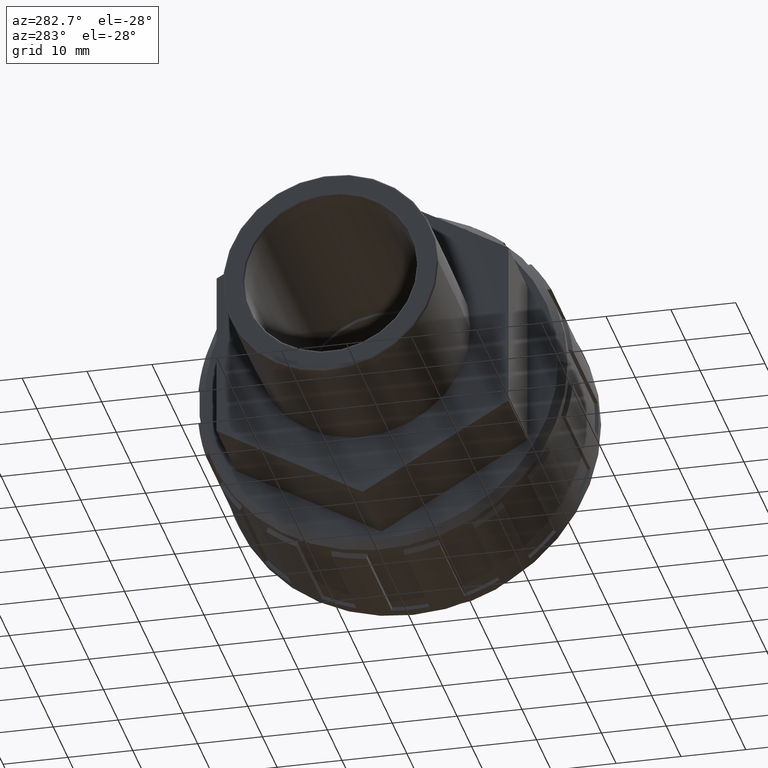
[diagram: clean part render]
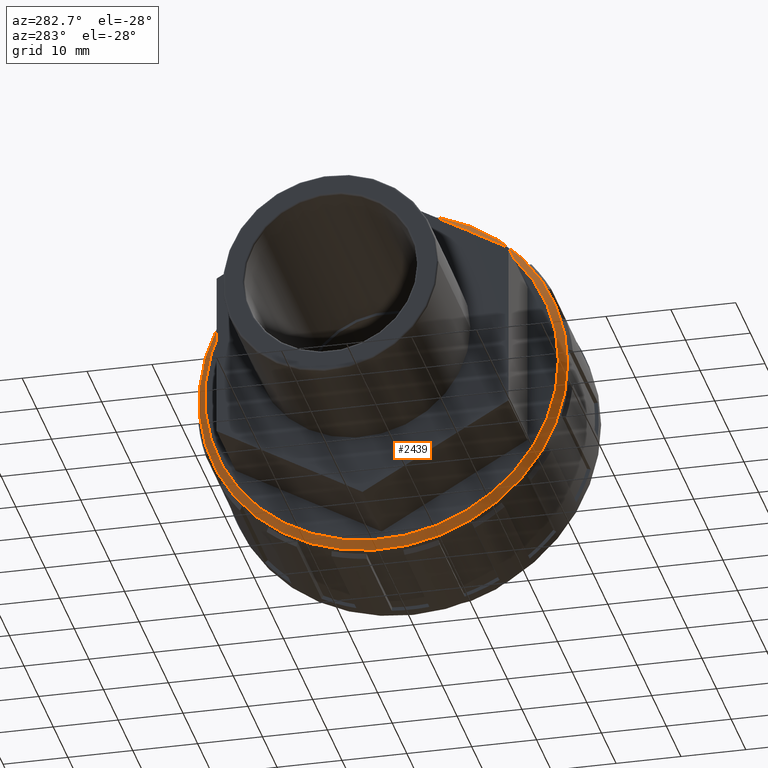
[diagram: same view with one face highlighted and labeled with its STEP entity id]
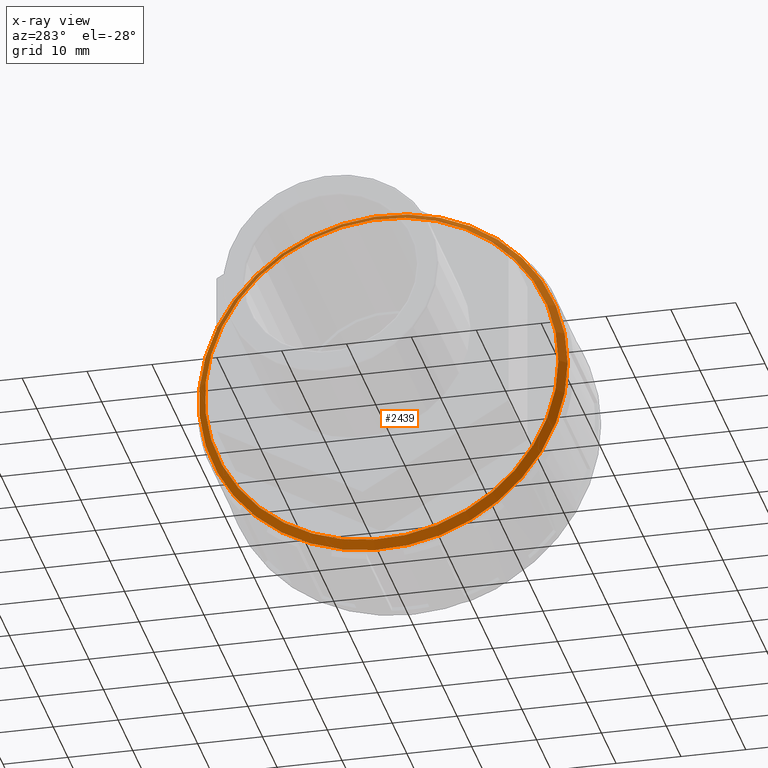
[diagram: x-ray of the same camera — body ghosted, the highlighted face saturated]
A machine part, auxiliary view. The second image highlights one B-rep face of the part: STEP entity #2439.
The next image is the same camera in x-ray: the body ghosted, the highlighted face saturated — about 13% of this face is hidden behind the body in this view.
In plain terms, the highlighted conical surface has half-angle 45 deg.
Its self-contained STEP definition (entity closure, byte-faithful):
#46=CONICAL_SURFACE('',#2690,27.84,45.);
#60=FACE_BOUND('',#479,.T.);
#204=CIRCLE('',#2691,28.42);
#205=CIRCLE('',#2692,27.26);
#333=FACE_OUTER_BOUND('',#478,.T.);
#478=EDGE_LOOP('',(#2143));
#479=EDGE_LOOP('',(#2144));
#1181=VERTEX_POINT('',#4144);
#1182=VERTEX_POINT('',#4146);
#1530=EDGE_CURVE('',#1181,#1181,#204,.T.);
#1531=EDGE_CURVE('',#1182,#1182,#205,.T.);
#2143=ORIENTED_EDGE('',*,*,#1530,.T.);
#2144=ORIENTED_EDGE('',*,*,#1531,.T.);
#2439=ADVANCED_FACE('',(#333,#60),#46,.T.);
#2690=AXIS2_PLACEMENT_3D('',#4143,#3413,#3414);
#2691=AXIS2_PLACEMENT_3D('',#4145,#3415,#3416);
#2692=AXIS2_PLACEMENT_3D('',#4147,#3417,#3418);
#3413=DIRECTION('center_axis',(1.,1.83697019872103E-16,0.));
#3414=DIRECTION('ref_axis',(-1.92195458661974E-16,1.,0.));
#3415=DIRECTION('center_axis',(-1.,-1.83697019872103E-16,0.));
#3416=DIRECTION('ref_axis',(-2.00347022399198E-16,1.,0.));
#3417=DIRECTION('center_axis',(1.,1.83697019872103E-16,0.));
#3418=DIRECTION('ref_axis',(-1.83697019872103E-16,1.,0.));
#4143=CARTESIAN_POINT('Origin',(-1.07,6.53593996704942E-15,0.));
#4144=CARTESIAN_POINT('',(-0.489999999999994,-28.42,3.48044620317678E-15));
#4145=CARTESIAN_POINT('Origin',(-0.49,6.64248423857524E-15,0.));
#4146=CARTESIAN_POINT('',(-1.65,-27.26,-3.33838717447569E-15));
#4147=CARTESIAN_POINT('Origin',(-1.65,6.4293956955236E-15,0.));